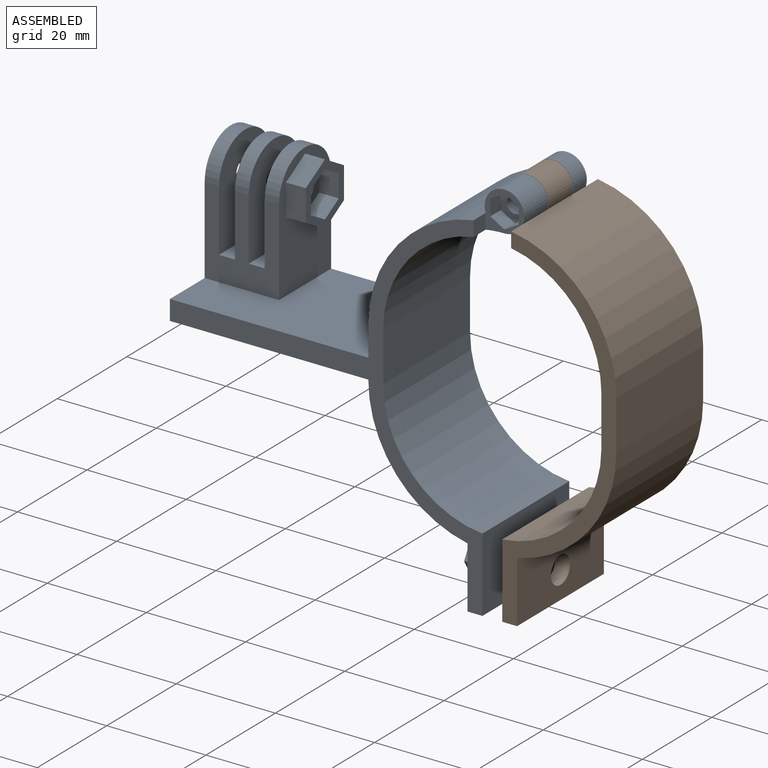
[diagram: assembled view]
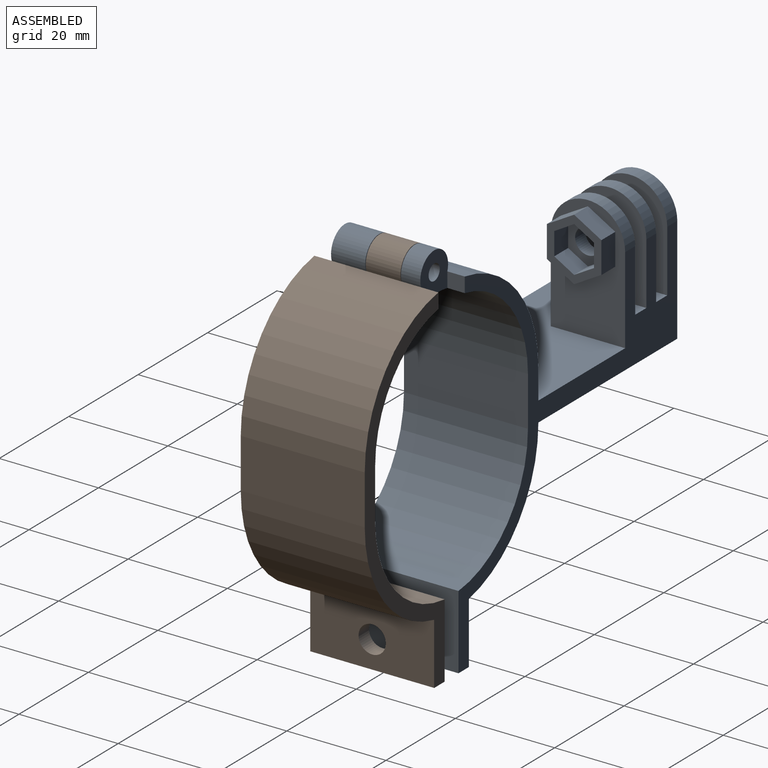
[diagram: assembled view, second angle]
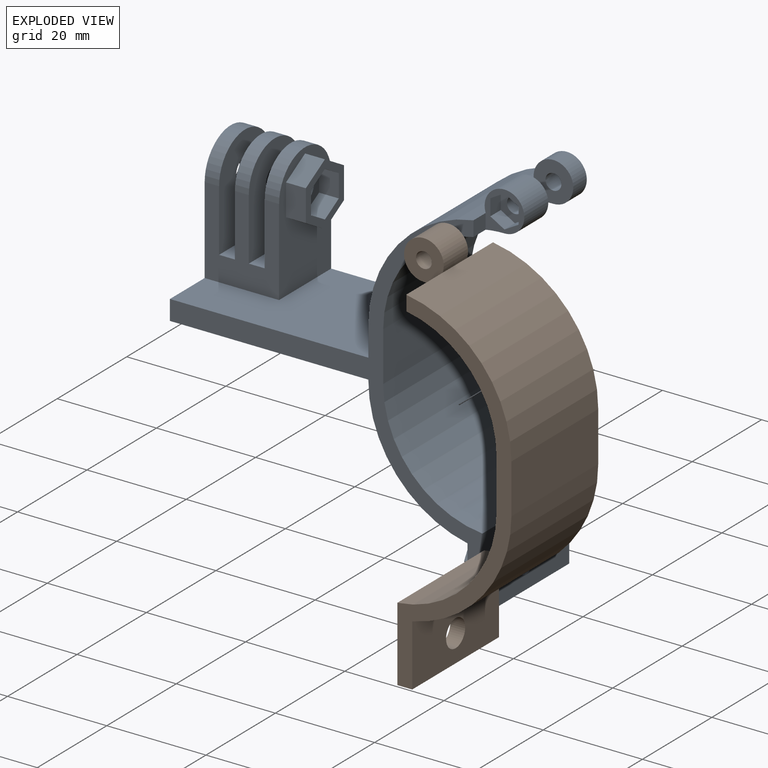
[diagram: exploded view]
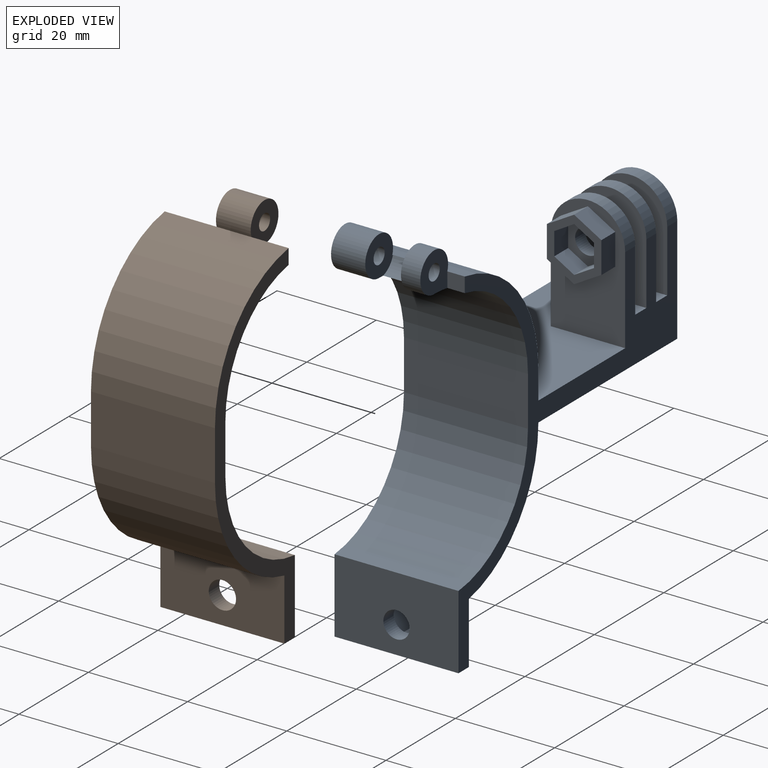
[diagram: exploded view, second angle]
ASSEMBLY  parts=2 mates=2
PART A: 74 faces, bbox 69x25x76.9 mm
  f0: plane 9.24x8mm, normal (1,0,0), area 34.2mm2, adj f58,f61,f62,f63,f64,f65,f72
  f1: plane 40x25mm, normal (0,0,1), area 775mm2, adj f10,f13,f14,f46,f47,f48
  f2: cylinder r=1.6mm len=3.9mm, axis (0,-1,0), area 39.2mm2, adj f27,f28
  f3: cylinder r=22mm len=25mm, axis (0,1,0), area 828.8mm2, adj f4,f6,f8,f12,f13,f14,f18,f19
  f4: cylinder r=4mm len=8mm, axis (0,-1,0), area 139.1mm2, adj f3,f5,f6,f28
  f5: cylinder r=25mm len=25mm, axis (0,1,0), area 885.3mm2, adj f4,f8,f10,f13,f14,f19,f20,f28
  f6: plane 8.33x8mm, normal (0,-1,0), area 25.3mm2, adj f3,f4,f20,f21,f22,f23,f24,f25
  f7: cylinder r=1.6mm len=3.9mm, axis (0,-1,0), area 39.2mm2, adj f18,f29
  f8: cylinder r=4mm len=8mm, axis (0,-1,0), area 78.6mm2, adj f3,f5,f18,f29
  f9: cylinder r=25mm len=25mm, axis (0,1,0), area 855.9mm2, adj f13,f14,f16,f45
  f10: plane 25x6mm, normal (-1,0,0), area 150mm2, adj f1,f5,f13,f14
  f11: cylinder r=22mm len=25mm, axis (0,1,0), area 813.9mm2, adj f12,f13,f14,f15
  f12: plane 25x10mm, normal (1,0,0), area 250mm2, adj f3,f11,f13,f14
  f13: plane 71.62x63mm, normal (0,-1,0), area 430.6mm2, adj f1,f3,f5,f9,f10,f11,f12,f15
  f14: plane 71.62x63mm, normal (0,1,0), area 613.1mm2, adj f1,f3,f5,f9,f10,f11,f12,f15
  f15: plane 25x15mm, normal (1,0,0), area 352.9mm2, adj f11,f13,f14,f17,f44
  f16: plane 25x12.41mm, normal (-1,0,0), area 205.6mm2, adj f9,f13,f14,f17,f36,f37,f38,f39
  f17: plane 25x8mm, normal (0,0,-1), area 106.8mm2, adj f13,f14,f15,f16,f36,f40,f42
  f18: plane 8.33x8mm, normal (0,1,0), area 45.4mm2, adj f3,f7,f8,f19
  f19: plane 3.5x3.04mm, normal (1,0,0), area 10.6mm2, adj f3,f5,f14,f18
  f20: plane 3.5x3.04mm, normal (1,0,0), area 10.6mm2, adj f3,f5,f6,f13
  f21: plane 3.29x3mm, normal (-1,0,0), area 9.9mm2, adj f6,f22,f26,f27
  f22: plane 3x2.85mm, normal (-0.5,0,-0.87), area 9.9mm2, adj f6,f21,f23,f27
  f23: plane 3x2.85mm, normal (0.5,0,-0.87), area 9.9mm2, adj f6,f22,f24,f27
  f24: plane 3.29x3mm, normal (1,0,0), area 9.9mm2, adj f6,f23,f25,f27
  f25: plane 3x2.85mm, normal (0.5,0,0.87), area 9.9mm2, adj f6,f24,f26,f27
  f26: plane 3x2.85mm, normal (-0.5,0,0.87), area 9.9mm2, adj f6,f21,f25,f27
  f27: plane 6.58x5.7mm, normal (0,-1,0), area 20.1mm2, adj f2,f21,f22,f23,f24,f25,f26
  f28: plane 8.03x8mm, normal (0,1,0), area 43.1mm2, adj f2,f3,f4,f5,f30
  f29: plane 8.03x8mm, normal (0,-1,0), area 43.1mm2, adj f3,f5,f7,f8,f30
  f30: cylinder r=4.2mm len=7.2mm, axis (0,1,0), area 29.2mm2, adj f3,f5,f28,f29
  f31: plane 5x4mm, normal (0,0.87,0.5), area 23.1mm2, adj f32,f41,f42,f43
  f32: plane 5x4.62mm, normal (0,0,1), area 23.1mm2, adj f31,f33,f42,f43
  f33: plane 5x4mm, normal (0,-0.87,0.5), area 23.1mm2, adj f32,f34,f42,f43
  f34: plane 5x4mm, normal (0,-0.87,-0.5), area 23.1mm2, adj f33,f35,f42,f43
  f35: plane 5x4.62mm, normal (0,0,-1), area 23.1mm2, adj f34,f41,f42,f43
  f36: plane 5.5x5mm, normal (0,-0.87,-0.5), area 31.8mm2, adj f16,f17,f37,f42
  f37: plane 5.5x5mm, normal (0,-0.87,0.5), area 31.8mm2, adj f16,f36,f38,f42
  f38: plane 6.35x5mm, normal (0,0,1), area 31.8mm2, adj f16,f37,f39,f42
  f39: plane 5.5x5mm, normal (0,0.87,0.5), area 31.8mm2, adj f16,f38,f40,f42
  f40: plane 5.5x5mm, normal (0,0.87,-0.5), area 31.8mm2, adj f16,f17,f39,f42
  f41: plane 5x4mm, normal (0,0.87,-0.5), area 23.1mm2, adj f31,f35,f42,f43
  f42: plane 12.7x11mm, normal (-1,0,0), area 49.4mm2, adj f17,f31,f32,f33,f34,f35,f36,f37
  f43: plane 9.24x8mm, normal (-1,0,0), area 33.4mm2, adj f31,f32,f33,f34,f35,f41,f44
  f44: cylinder r=2.65mm len=5.3mm, axis (-1,0,0), area 50mm2, adj f15,f43
  f45: plane 40x25mm, normal (0,0,-1), area 1000mm2, adj f9,f13,f14,f46
  f46: plane 29x25mm, normal (-1,0,0), area 429.6mm2, adj f1,f13,f14,f45,f47,f57,f60
  f47: plane 17.5x15mm, normal (0,-1,0), area 182.5mm2, adj f1,f46,f48,f49,f50,f51,f52,f53
  f48: plane 25x15mm, normal (1,0,0), area 246.1mm2, adj f1,f14,f47,f55,f66,f67,f68,f69
  f49: plane 20x15mm, normal (1,0,0), area 254.6mm2, adj f14,f47,f51,f57,f60
  f50: plane 20x15mm, normal (-1,0,0), area 254.6mm2, adj f14,f47,f51,f56,f59
  f51: plane 15x3.2mm, normal (0,0,1), area 48mm2, adj f14,f47,f49,f50
  f52: plane 20x15mm, normal (1,0,0), area 254.6mm2, adj f14,f47,f54,f56,f59
  f53: plane 20x15mm, normal (-1,0,0), area 254.6mm2, adj f14,f47,f54,f55,f58
  f54: plane 15x3.2mm, normal (0,0,1), area 48mm2, adj f14,f47,f52,f53
  f55: cylinder r=7.5mm len=15mm, axis (-1,0,0), area 68.3mm2, adj f14,f47,f48,f53
  f56: cylinder r=7.5mm len=15mm, axis (-1,0,0), area 66mm2, adj f14,f47,f50,f52
  f57: cylinder r=7.5mm len=15mm, axis (-1,0,0), area 68.3mm2, adj f14,f46,f47,f49
  f58: cylinder r=2.6mm len=5.2mm, axis (-1,0,0), area 47.4mm2, adj f0,f53
  f59: cylinder r=2.6mm len=5.2mm, axis (-1,0,0), area 45.7mm2, adj f50,f52
  f60: cylinder r=2.6mm len=5.2mm, axis (-1,0,0), area 47.4mm2, adj f46,f49
  f61: plane 4.62x4mm, normal (0,1,0), area 18.5mm2, adj f0,f62,f72,f73
  f62: plane 4x4mm, normal (0,0.5,-0.87), area 18.5mm2, adj f0,f61,f63,f73
  f63: plane 4x4mm, normal (0,-0.5,-0.87), area 18.5mm2, adj f0,f62,f64,f73
  f64: plane 4.62x4mm, normal (0,-1,0), area 18.5mm2, adj f0,f63,f65,f73
  f65: plane 4x4mm, normal (0,-0.5,0.87), area 18.5mm2, adj f0,f64,f72,f73
  f66: plane 5.5x4mm, normal (0,0.5,0.87), area 25.4mm2, adj f48,f67,f71,f73
  f67: plane 5.5x4mm, normal (0,-0.5,0.87), area 25.4mm2, adj f48,f66,f68,f73
  f68: plane 6.35x4mm, normal (0,-1,0), area 25.4mm2, adj f48,f67,f69,f73
  f69: plane 5.5x4mm, normal (0,-0.5,-0.87), area 25.4mm2, adj f48,f68,f70,f73
  f70: plane 5.5x4mm, normal (0,0.5,-0.87), area 25.4mm2, adj f48,f69,f71,f73
  f71: plane 6.35x4mm, normal (0,1,0), area 25.4mm2, adj f48,f66,f70,f73
  f72: plane 4x4mm, normal (0,0.5,0.87), area 18.5mm2, adj f0,f61,f65,f73
  f73: plane 12.7x11mm, normal (1,0,0), area 49.4mm2, adj f61,f62,f63,f64,f65,f66,f67,f68
PART B: 18 faces, bbox 29x25x76.9 mm
  f0: cylinder r=22mm len=25mm, axis (0,1,0), area 795.4mm2, adj f1,f6,f7,f8,f12,f13,f14,f15
  f1: cylinder r=4mm len=8mm, axis (0,-1,0), area 141.1mm2, adj f0,f3,f12,f13
  f2: cylinder r=25mm len=25mm, axis (0,1,0), area 855.9mm2, adj f4,f7,f8,f10
  f3: cylinder r=25mm len=25mm, axis (0,1,0), area 886.7mm2, adj f1,f4,f7,f8,f14,f15
  f4: plane 25x10mm, normal (-1,0,0), area 250mm2, adj f2,f3,f7,f8
  f5: cylinder r=22mm len=25mm, axis (0,1,0), area 813.9mm2, adj f6,f7,f8,f9
  f6: plane 25x10mm, normal (1,0,0), area 250mm2, adj f0,f5,f7,f8
  f7: plane 71.62x23mm, normal (0,-1,0), area 270.6mm2, adj f0,f2,f3,f4,f5,f6,f9,f10
  f8: plane 71.62x23mm, normal (0,1,0), area 270.6mm2, adj f0,f2,f3,f4,f5,f6,f9,f10
  f9: plane 25x15mm, normal (1,0,0), area 351.2mm2, adj f5,f7,f8,f11,f17
  f10: plane 25x12.41mm, normal (-1,0,0), area 286.6mm2, adj f2,f7,f8,f11,f17
  f11: plane 25x3mm, normal (0,0,-1), area 75mm2, adj f7,f8,f9,f10
  f12: plane 8.33x8mm, normal (0,-1,0), area 45.4mm2, adj f0,f1,f15,f16
  f13: plane 8.33x8mm, normal (0,1,0), area 45.4mm2, adj f0,f1,f14,f16
  f14: plane 10.5x3.04mm, normal (1,0,0), area 31.9mm2, adj f0,f3,f8,f13
  f15: plane 7.5x3.04mm, normal (1,0,0), area 22.8mm2, adj f0,f3,f7,f12
  f16: cylinder r=1.6mm len=7mm, axis (0,-1,0), area 70.4mm2, adj f12,f13
  f17: cylinder r=2.75mm len=5.5mm, axis (1,0,0), area 51.8mm2, adj f9,f10
PLACE A t=(10.45,12.54,3.55)mm fixed
PLACE B rot(axis=(0,0,1),180deg) t=(10.45,-12.46,3.55)mm
MATE cylindrical B.f1 <-> A.f2  axis (0,1,0) through (10.45,5.04,34.55)mm
MATE planar B.f7 <-> A.f14  axis (0,1,0) through (25.69,12.54,-1.85)mm
